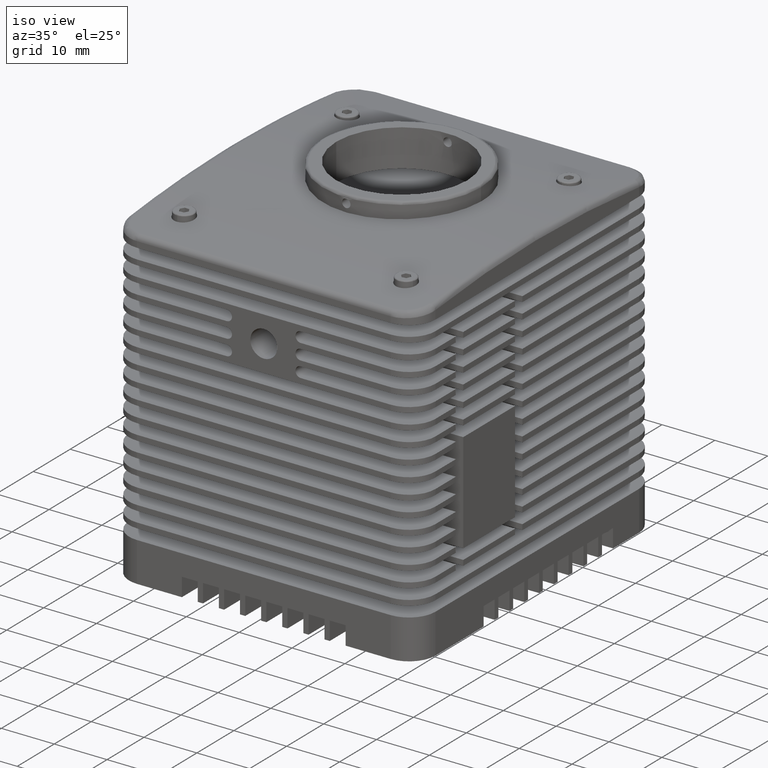
[diagram: clean part render]
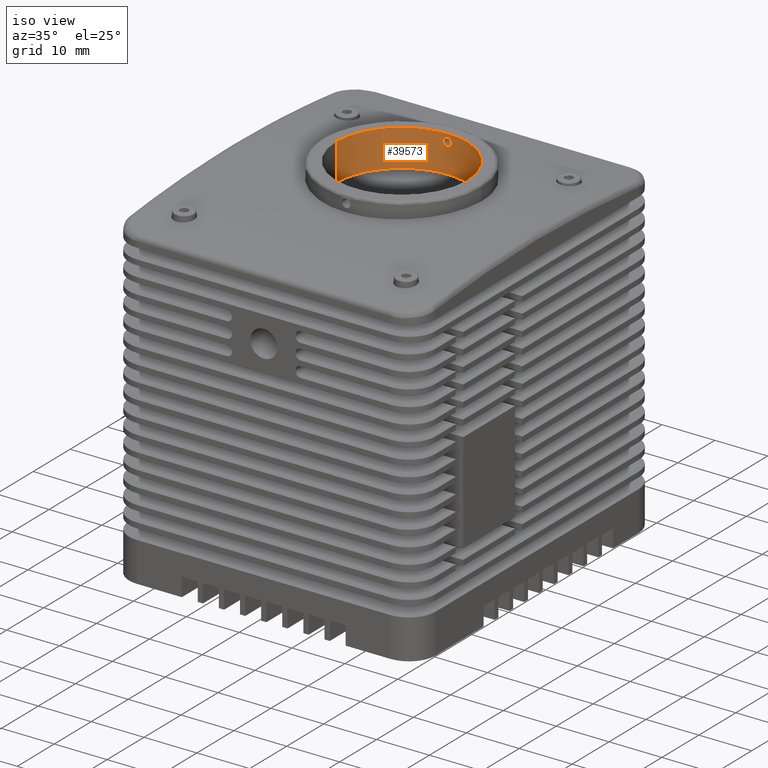
[diagram: same view with one face highlighted and labeled with its STEP entity id]
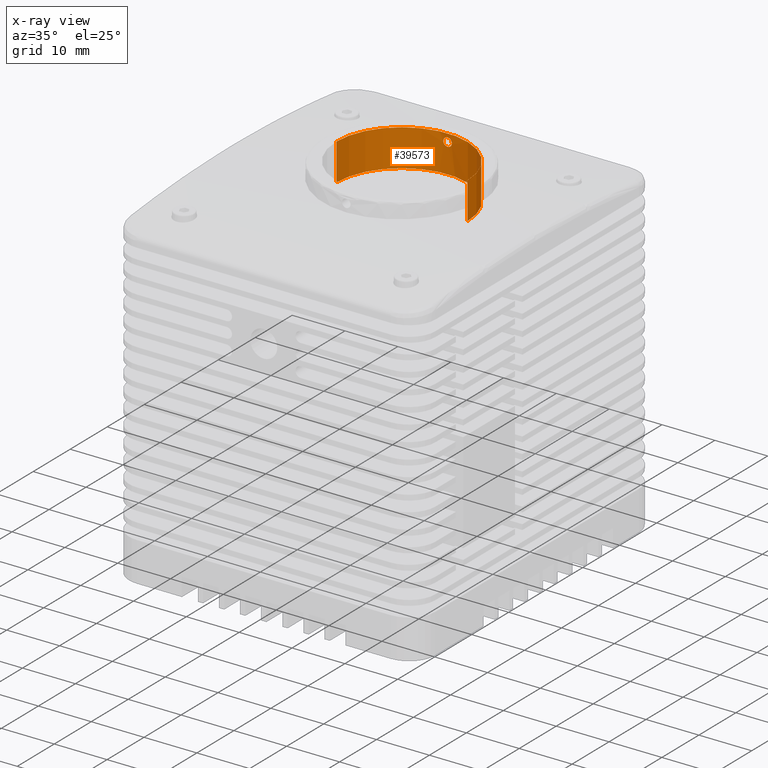
[diagram: x-ray of the same camera — body ghosted, the highlighted face saturated]
A machine part, iso view. The second image highlights one B-rep face of the part: STEP entity #39573.
The next image is the same camera in x-ray: the body ghosted, the highlighted face saturated — about 0% of this face is hidden behind the body in this view.
In plain terms, the highlighted cylindrical surface (partial cylindrical patch) has radius 12.4 mm, axis along (0, 0, 1).
Its self-contained STEP definition (entity closure, byte-faithful):
#679 = CARTESIAN_POINT ( 'NONE',  ( -7.220564987775434318, 17.94657936056900027, 15.19999999999999751 ) ) ;
#1059 = CARTESIAN_POINT ( 'NONE',  ( -7.220189208755734001, 17.94657936056900027, 16.80000000000000426 ) ) ;
#1138 = ORIENTED_EDGE ( 'NONE', *, *, #61595, .T. ) ;
#1754 = EDGE_CURVE ( 'NONE', #10702, #50267, #2784, .T. ) ;
#2784 = CIRCLE ( 'NONE', #21832, 12.40000000000000036 ) ;
#3041 = LINE ( 'NONE', #16125, #73600 ) ;
#4215 = CARTESIAN_POINT ( 'NONE',  ( -6.335223947319196469, 17.92213932871451831, 16.20692712589772810 ) ) ;
#4811 = VERTEX_POINT ( 'NONE', #19979 ) ;
#5486 = DIRECTION ( 'NONE',  ( 1.000000000000000000, 0.000000000000000000, 0.000000000000000000 ) ) ;
#7014 = CARTESIAN_POINT ( 'NONE',  ( -7.893700336464535283, 17.92213932871453963, 15.79307287410120253 ) ) ;
#7408 = CARTESIAN_POINT ( 'NONE',  ( -7.755116422481421523, 17.93024335233559086, 16.49058656307901316 ) ) ;
#9389 = CARTESIAN_POINT ( 'NONE',  ( -6.475020497630888272, 17.93030110073761207, 16.49194983805084291 ) ) ;
#9569 = CARTESIAN_POINT ( 'NONE',  ( -7.114462141891999103, 17.94657936056900027, 16.80000000000000071 ) ) ;
#9786 = CARTESIAN_POINT ( 'NONE',  ( -6.906006839147255327, 17.94521362811279630, 16.77957924322679872 ) ) ;
#10178 = CARTESIAN_POINT ( 'NONE',  ( -6.334638435155795833, 17.92210031496302491, 15.79242895591736762 ) ) ;
#10573 = CARTESIAN_POINT ( 'NONE',  ( -6.622511678025318815, 17.93703675710774093, 16.63939975321896370 ) ) ;
#10702 = VERTEX_POINT ( 'NONE', #13973 ) ;
#11075 = VERTEX_POINT ( 'NONE', #71128 ) ;
#12592 = CARTESIAN_POINT ( 'NONE',  ( -7.753903786153852451, 17.93030110073758721, 15.50805016195137398 ) ) ;
#13750 = CARTESIAN_POINT ( 'NONE',  ( -7.605983516129978028, 17.93705870992756957, 16.63997890898189524 ) ) ;
#13973 = CARTESIAN_POINT ( 'NONE',  ( 5.285537858107999476, 5.546579360568999029, 10.50000000000000000 ) ) ;
#14147 = CARTESIAN_POINT ( 'NONE',  ( -7.519355607571750255, 17.94035895063355213, 16.69780383924960532 ) ) ;
#15742 = CARTESIAN_POINT ( 'NONE',  ( -6.622940730469212944, 17.93705870822822845, 15.36002112826942501 ) ) ;
#15791 = EDGE_CURVE ( 'NONE', #4811, #64577, #33108, .T. ) ;
#16119 = CARTESIAN_POINT ( 'NONE',  ( -6.314319189031942336, 17.92073675715822745, 15.89472659792818732 ) ) ;
#16125 = CARTESIAN_POINT ( 'NONE',  ( 5.285537858107999476, 5.546579360568999029, 8.500000000000000000 ) ) ;
#19979 = CARTESIAN_POINT ( 'NONE',  ( -19.51446214189200035, 5.546579360568999029, 17.50000000000000000 ) ) ;
#20912 = CARTESIAN_POINT ( 'NONE',  ( -7.008359296012370621, 17.94657936056899672, 16.80000000000000071 ) ) ;
#21305 = CARTESIAN_POINT ( 'NONE',  ( -6.710257369276877881, 17.94037635000483633, 16.69847611164325230 ) ) ;
#21706 = DIRECTION ( 'NONE',  ( 0.000000000000000000, 0.000000000000000000, 1.000000000000000000 ) ) ;
#21832 = AXIS2_PLACEMENT_3D ( 'NONE', #33335, #57562, #76904 ) ;
#23119 = VECTOR ( 'NONE', #26131, 1000.000000000000000 ) ;
#24515 = CARTESIAN_POINT ( 'NONE',  ( -7.114462141891999103, 17.94657936056900027, 15.20000000000000107 ) ) ;
#24573 = LINE ( 'NONE', #56321, #23119 ) ;
#25284 = CARTESIAN_POINT ( 'NONE',  ( -7.894285848626164892, 17.92210031496315281, 16.20757104408651728 ) ) ;
#26131 = DIRECTION ( 'NONE',  ( 0.000000000000000000, 0.000000000000000000, 1.000000000000000000 ) ) ;
#27286 = CARTESIAN_POINT ( 'NONE',  ( -6.709568782610395132, 17.94035895454750218, 15.30219616075049949 ) ) ;
#28939 = FACE_OUTER_BOUND ( 'NONE', #43229, .T. ) ;
#29487 = ORIENTED_EDGE ( 'NONE', *, *, #15791, .F. ) ;
#33108 = CIRCLE ( 'NONE', #49611, 12.40000000000000036 ) ;
#33335 = CARTESIAN_POINT ( 'NONE',  ( -7.114462141891999991, 5.546579360568999029, 10.50000000000000000 ) ) ;
#33447 = ORIENTED_EDGE ( 'NONE', *, *, #1754, .F. ) ;
#33849 = EDGE_CURVE ( 'NONE', #55044, #11075, #58440, .T. ) ;
#34011 = CARTESIAN_POINT ( 'NONE',  ( -7.114462141891999103, 17.94657936056900027, 15.20000000000000107 ) ) ;
#34402 = CARTESIAN_POINT ( 'NONE',  ( -6.415584390065264486, 17.92693532452395999, 15.59647203701109319 ) ) ;
#36824 = EDGE_CURVE ( 'NONE', #11075, #55044, #70362, .T. ) ;
#36831 = CARTESIAN_POINT ( 'NONE',  ( -7.914605094752348080, 17.92073675715820968, 16.10527340207002212 ) ) ;
#37597 = CARTESIAN_POINT ( 'NONE',  ( -7.811464647710402609, 17.92704317239486400, 15.59482283416599380 ) ) ;
#38385 = CARTESIAN_POINT ( 'NONE',  ( -7.114462141891999103, 17.94657936056900027, 16.80000000000000071 ) ) ;
#39573 = ADVANCED_FACE ( 'NONE', ( #41646, #28939 ), #77390, .F. ) ;
#39591 = CARTESIAN_POINT ( 'NONE',  ( -6.473807898487428325, 17.93024335403493552, 15.50941339966969323 ) ) ;
#41646 = FACE_BOUND ( 'NONE', #71933, .T. ) ;
#43229 = EDGE_LOOP ( 'NONE', ( #51700, #33447, #1138, #29487 ) ) ;
#43557 = CARTESIAN_POINT ( 'NONE',  ( -7.813339893720825380, 17.92693532452382854, 16.40352796298503435 ) ) ;
#43947 = CARTESIAN_POINT ( 'NONE',  ( -7.606412605757862266, 17.93703675710778001, 15.36060024677883007 ) ) ;
#44336 = CARTESIAN_POINT ( 'NONE',  ( -7.322917444631562134, 17.94521362811291709, 15.22042075676947093 ) ) ;
#44805 = ORIENTED_EDGE ( 'NONE', *, *, #33849, .T. ) ;
#46786 = CARTESIAN_POINT ( 'NONE',  ( 5.285537858107999476, 5.546579360568999029, 17.50000000000000000 ) ) ;
#47631 = EDGE_CURVE ( 'NONE', #50267, #4811, #24573, .T. ) ;
#47952 = AXIS2_PLACEMENT_3D ( 'NONE', #65867, #59904, #5486 ) ;
#49200 = CARTESIAN_POINT ( 'NONE',  ( -7.114462141891999991, 5.546579360568999029, 17.50000000000000000 ) ) ;
#49611 = AXIS2_PLACEMENT_3D ( 'NONE', #49200, #74597, #73817 ) ;
#50267 = VERTEX_POINT ( 'NONE', #60771 ) ;
#51700 = ORIENTED_EDGE ( 'NONE', *, *, #47631, .F. ) ;
#55044 = VERTEX_POINT ( 'NONE', #9569 ) ;
#56263 = CARTESIAN_POINT ( 'NONE',  ( -7.518666914512347255, 17.94037635000469422, 15.30152388836046917 ) ) ;
#56321 = CARTESIAN_POINT ( 'NONE',  ( -19.51446214189200035, 5.546579360568999029, 8.500000000000000000 ) ) ;
#57562 = DIRECTION ( 'NONE',  ( 0.000000000000000000, 0.000000000000000000, 1.000000000000000000 ) ) ;
#58440 = B_SPLINE_CURVE_WITH_KNOTS ( 'NONE', 3,
 ( #75719, #20912, #9786, #21305, #10573, #9389, #70149, #4215, #64582, #16119, #10178, #34402, #39591, #15742, #27286, #70933, #76901, #34011 ),
 .UNSPECIFIED., .F., .F.,
 ( 4, 2, 2, 2, 2, 2, 2, 2, 4 ),
 ( 0.000000000000000000, 0.1250000000000000000, 0.2500000000000000000, 0.3750000000000000000, 0.5000000000000000000, 0.6250000000000000000, 0.7500000000000000000, 0.8750000000000000000, 1.000000000000000000 ),
 .UNSPECIFIED. ) ;
#59904 = DIRECTION ( 'NONE',  ( 0.000000000000000000, 0.000000000000000000, 1.000000000000000000 ) ) ;
#60771 = CARTESIAN_POINT ( 'NONE',  ( -19.51446214189200035, 5.546579360568999029, 10.50000000000000000 ) ) ;
#61425 = CARTESIAN_POINT ( 'NONE',  ( -7.322324471669150903, 17.94522866190462551, 16.77956076784992234 ) ) ;
#61595 = EDGE_CURVE ( 'NONE', #10702, #64577, #3041, .T. ) ;
#62899 = ORIENTED_EDGE ( 'NONE', *, *, #36824, .T. ) ;
#64577 = VERTEX_POINT ( 'NONE', #46786 ) ;
#64582 = CARTESIAN_POINT ( 'NONE',  ( -6.314605475268826318, 17.92075526579331424, 16.10637687554371311 ) ) ;
#65867 = CARTESIAN_POINT ( 'NONE',  ( -7.114462141891999991, 5.546579360568999029, 8.500000000000000000 ) ) ;
#68561 = CARTESIAN_POINT ( 'NONE',  ( -7.914318808514806847, 17.92075526579333555, 15.89362312445807746 ) ) ;
#70149 = CARTESIAN_POINT ( 'NONE',  ( -6.417459636073908236, 17.92704317239487821, 16.40517716583504892 ) ) ;
#70362 = B_SPLINE_CURVE_WITH_KNOTS ( 'NONE', 3,
 ( #24515, #679, #44336, #56263, #43947, #12592, #37597, #7014, #68561, #36831, #25284, #43557, #7408, #13750, #14147, #61425, #1059, #38385 ),
 .UNSPECIFIED., .F., .F.,
 ( 4, 2, 2, 2, 2, 2, 2, 2, 4 ),
 ( 0.000000000000000000, 0.1250000000000011657, 0.2500000000000023315, 0.3750000000000034972, 0.5000000000000027756, 0.6250000000000021094, 0.7500000000000014433, 0.8750000000000006661, 1.000000000000000000 ),
 .UNSPECIFIED. ) ;
#70933 = CARTESIAN_POINT ( 'NONE',  ( -6.906600028721933349, 17.94522866597388244, 15.22043923215010075 ) ) ;
#71128 = CARTESIAN_POINT ( 'NONE',  ( -7.114462141891999103, 17.94657936056900027, 15.20000000000000107 ) ) ;
#71933 = EDGE_LOOP ( 'NONE', ( #44805, #62899 ) ) ;
#73600 = VECTOR ( 'NONE', #21706, 1000.000000000000000 ) ;
#73817 = DIRECTION ( 'NONE',  ( 1.000000000000000000, 0.000000000000000000, 0.000000000000000000 ) ) ;
#74597 = DIRECTION ( 'NONE',  ( 0.000000000000000000, 0.000000000000000000, -1.000000000000000000 ) ) ;
#75719 = CARTESIAN_POINT ( 'NONE',  ( -7.114462141891999103, 17.94657936056900027, 16.80000000000000071 ) ) ;
#76901 = CARTESIAN_POINT ( 'NONE',  ( -7.008735237819107233, 17.94657936056900382, 15.20000000000000284 ) ) ;
#76904 = DIRECTION ( 'NONE',  ( 1.000000000000000000, 0.000000000000000000, 0.000000000000000000 ) ) ;
#77390 = CYLINDRICAL_SURFACE ( 'NONE', #47952, 12.40000000000000036 ) ;